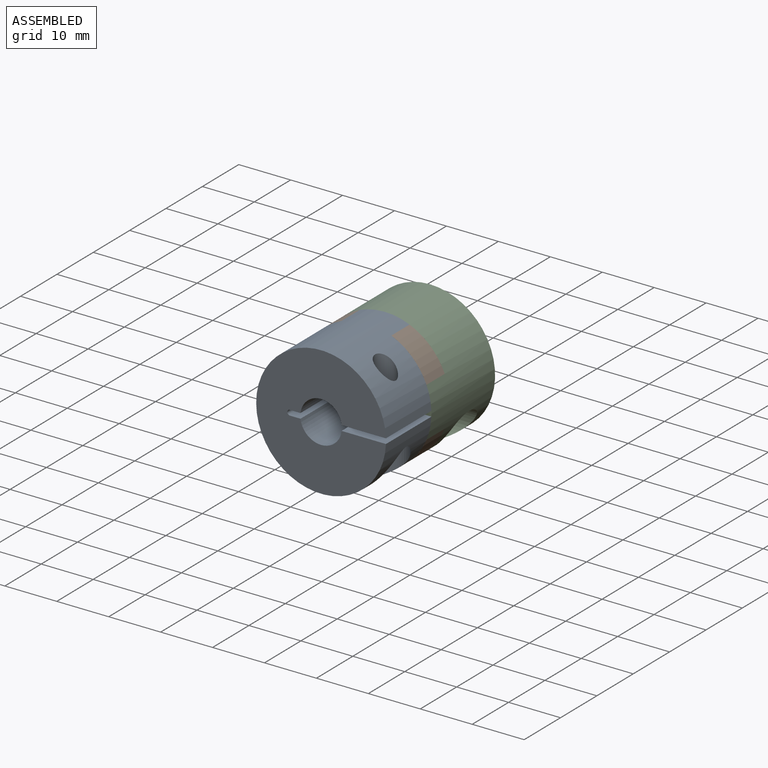
[diagram: assembled view]
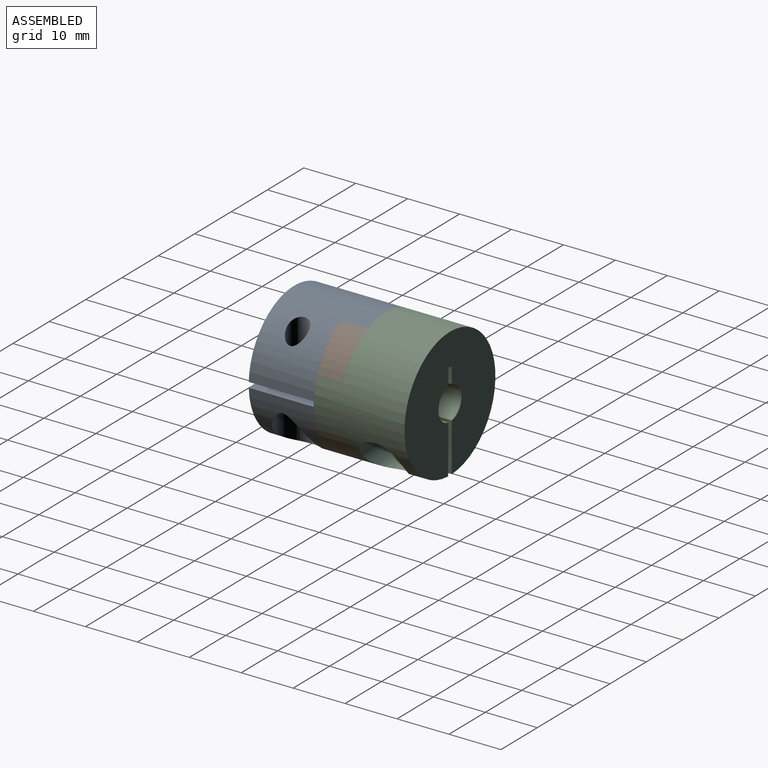
[diagram: assembled view, second angle]
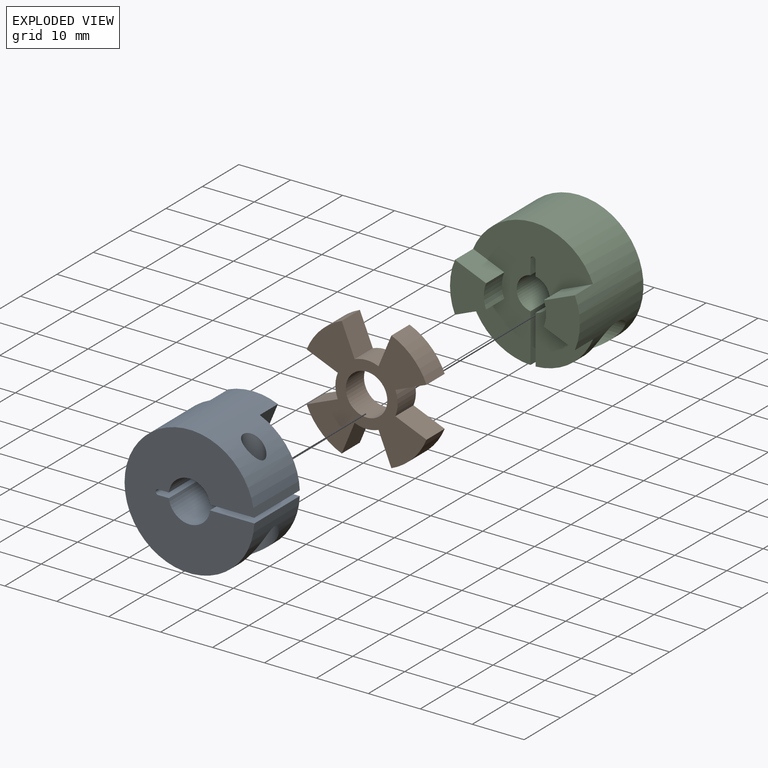
[diagram: exploded view]
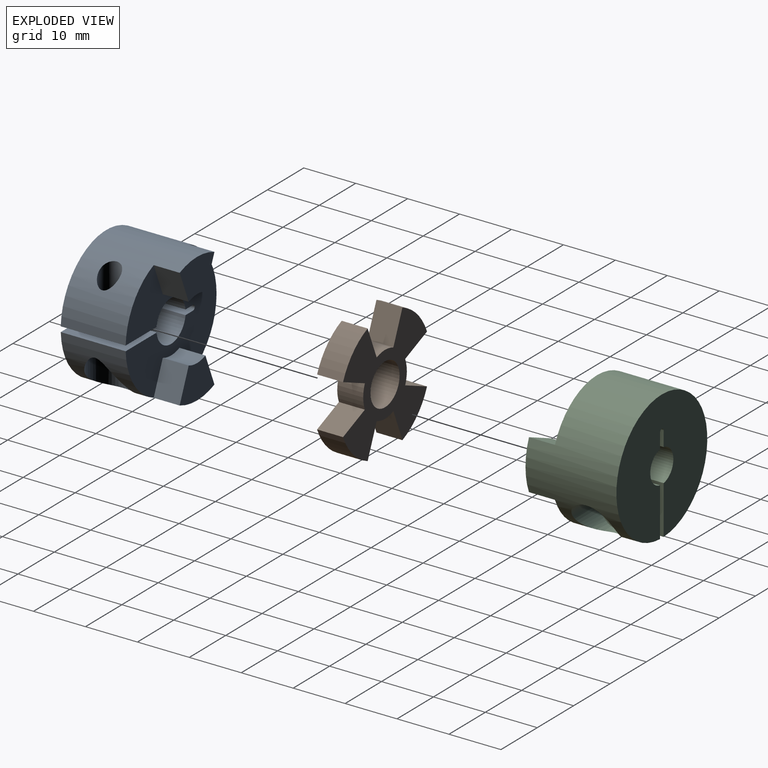
[diagram: exploded view, second angle]
ASSEMBLY  parts=3 mates=2
PART A: 22 faces, bbox 25x17.5x25 mm
  f0: cylinder r=12.5mm len=25mm, axis (0,1,0), area 978.8mm2, adj f1,f2,f8,f9,f10,f11,f13,f14
  f1: plane 12.5x8.52mm, normal (-1,0,0), area 94mm2, adj f0,f3,f10,f17,f18
  f2: plane 12.5x8.52mm, normal (1,0,0), area 94mm2, adj f0,f4,f10,f17,f21
  f3: cylinder r=4mm len=12.5mm, axis (0,1,0), area 144.5mm2, adj f1,f7,f10,f17
  f4: cylinder r=4mm len=12.5mm, axis (0,1,0), area 144.5mm2, adj f2,f5,f10,f17
  f5: plane 12.5x2.03mm, normal (1,0,0), area 25.4mm2, adj f4,f6,f10,f17
  f6: cylinder r=0.5mm len=12.5mm, axis (0,1,0), area 19.6mm2, adj f5,f7,f10,f17
  f7: plane 12.5x2.03mm, normal (-1,0,0), area 25.4mm2, adj f3,f6,f10,f17
  f8: plane 9.57x6.96mm, normal (0,-1,0), area 47.2mm2, adj f0,f11,f12,f13
  f9: plane 9.57x6.96mm, normal (0,-1,0), area 47.2mm2, adj f0,f14,f15,f16
  f10: plane 25x24.99mm, normal (0,1,0), area 429.7mm2, adj f0,f1,f2,f3,f4,f5,f6,f7
  f11: plane 6.01x5mm, normal (0.38,0,0.92), area 32.5mm2, adj f0,f8,f12,f17
  f12: cylinder r=6mm len=5mm, axis (0,-1,0), area 23.6mm2, adj f8,f11,f13,f17
  f13: plane 6.01x5mm, normal (0.38,0,-0.92), area 32.5mm2, adj f0,f8,f12,f17
  f14: plane 6.01x5mm, normal (-0.38,0,-0.92), area 32.5mm2, adj f0,f9,f15,f17
  f15: cylinder r=6mm len=5mm, axis (0,-1,0), area 23.6mm2, adj f9,f14,f16,f17
  f16: plane 6.01x5mm, normal (-0.38,0,0.92), area 32.5mm2, adj f0,f9,f15,f17
  f17: plane 24.99x23.1mm, normal (0,-1,0), area 335.3mm2, adj f0,f1,f2,f3,f4,f5,f6,f7
  f18: cylinder r=2mm len=4mm, axis (1,0,0), area 25.1mm2, adj f1,f19
  f19: plane 8x8mm, normal (1,0,0), area 37.7mm2, adj f18,f20
  f20: cylinder r=4mm len=9.34mm, axis (1,0,0), area 156.6mm2, adj f0,f19
  f21: cylinder r=2mm len=10.47mm, axis (1,0,0), area 112.1mm2, adj f0,f2
PART B: 19 faces, bbox 23.1x5x23.1 mm
  f0: cylinder r=12.5mm len=6.77mm, axis (0,1,0), area 49.1mm2, adj f1,f15,f17,f18
  f1: plane 6.01x5mm, normal (-0.38,0,-0.92), area 32.5mm2, adj f0,f2,f17,f18
  f2: cylinder r=6mm len=5mm, axis (0,1,0), area 23.6mm2, adj f1,f3,f17,f18
  f3: plane 6.01x5mm, normal (-0.38,0,0.92), area 32.5mm2, adj f2,f4,f17,f18
  f4: cylinder r=12.5mm len=6.77mm, axis (0,1,0), area 49.1mm2, adj f3,f5,f17,f18
  f5: plane 6.01x5mm, normal (0.92,0,-0.38), area 32.5mm2, adj f4,f6,f17,f18
  f6: cylinder r=6mm len=5mm, axis (0,1,0), area 23.6mm2, adj f5,f7,f17,f18
  f7: plane 6.01x5mm, normal (-0.92,0,-0.38), area 32.5mm2, adj f6,f8,f17,f18
  f8: cylinder r=12.5mm len=6.77mm, axis (0,1,0), area 49.1mm2, adj f7,f9,f17,f18
  f9: plane 6.01x5mm, normal (0.38,0,0.92), area 32.5mm2, adj f8,f10,f17,f18
  f10: cylinder r=6mm len=5mm, axis (0,1,0), area 23.6mm2, adj f9,f11,f17,f18
  f11: plane 6.01x5mm, normal (0.38,0,-0.92), area 32.5mm2, adj f10,f12,f17,f18
  f12: cylinder r=12.5mm len=6.77mm, axis (0,1,0), area 49.1mm2, adj f11,f13,f17,f18
  f13: plane 6.01x5mm, normal (-0.92,0,0.38), area 32.5mm2, adj f12,f14,f17,f18
  f14: cylinder r=6mm len=5mm, axis (0,1,0), area 23.6mm2, adj f13,f15,f17,f18
  f15: plane 6.01x5mm, normal (0.92,0,0.38), area 32.5mm2, adj f0,f14,f17,f18
  f16: cylinder r=4mm len=8mm, axis (0,1,0), area 125.7mm2, adj f17,f18
  f17: plane 23.1x23.1mm, normal (0,-1,0), area 251.7mm2, adj f0,f1,f2,f3,f4,f5,f6,f7
  f18: plane 23.1x23.1mm, normal (0,1,0), area 251.7mm2, adj f0,f1,f2,f3,f4,f5,f6,f7
PART C: 22 faces, bbox 25x17.5x25 mm
  f0: cylinder r=12.5mm len=25mm, axis (0,1,0), area 978.8mm2, adj f1,f2,f8,f9,f10,f11,f13,f14
  f1: plane 12.5x9.35mm, normal (-1,0,0), area 104.4mm2, adj f0,f3,f10,f17,f18
  f2: plane 12.5x9.35mm, normal (1,0,0), area 104.4mm2, adj f0,f4,f10,f17,f21
  f3: cylinder r=3.17mm len=12.5mm, axis (0,1,0), area 112.1mm2, adj f1,f7,f10,f17
  f4: cylinder r=3.17mm len=12.5mm, axis (0,1,0), area 112.1mm2, adj f2,f5,f10,f17
  f5: plane 12.5x2.86mm, normal (1,0,0), area 35.8mm2, adj f4,f6,f10,f17
  f6: cylinder r=0.5mm len=12.5mm, axis (0,1,0), area 19.6mm2, adj f5,f7,f10,f17
  f7: plane 12.5x2.86mm, normal (-1,0,0), area 35.8mm2, adj f3,f6,f10,f17
  f8: plane 9.57x6.96mm, normal (0,-1,0), area 47.2mm2, adj f0,f11,f12,f13
  f9: plane 9.57x6.96mm, normal (0,-1,0), area 47.2mm2, adj f0,f14,f15,f16
  f10: plane 25x24.99mm, normal (0,1,0), area 446.6mm2, adj f0,f1,f2,f3,f4,f5,f6,f7
  f11: plane 6.01x5mm, normal (0.38,0,0.92), area 32.5mm2, adj f0,f8,f12,f17
  f12: cylinder r=6mm len=5mm, axis (0,-1,0), area 23.6mm2, adj f8,f11,f13,f17
  f13: plane 6.01x5mm, normal (0.38,0,-0.92), area 32.5mm2, adj f0,f8,f12,f17
  f14: plane 6.01x5mm, normal (-0.38,0,-0.92), area 32.5mm2, adj f0,f9,f15,f17
  f15: cylinder r=6mm len=5mm, axis (0,-1,0), area 23.6mm2, adj f9,f14,f16,f17
  f16: plane 6.01x5mm, normal (-0.38,0,0.92), area 32.5mm2, adj f0,f9,f15,f17
  f17: plane 24.99x23.1mm, normal (0,-1,0), area 352.2mm2, adj f0,f1,f2,f3,f4,f5,f6,f7
  f18: cylinder r=2mm len=4mm, axis (1,0,0), area 25.1mm2, adj f1,f19
  f19: plane 8x8mm, normal (1,0,0), area 37.7mm2, adj f18,f20
  f20: cylinder r=4mm len=9.34mm, axis (1,0,0), area 156.6mm2, adj f0,f19
  f21: cylinder r=2mm len=10.47mm, axis (1,0,0), area 112.1mm2, adj f0,f2
PLACE A rot(axis=(0.71,0,-0.71),180deg) t=(51.99,-14.43,-17.92)mm
PLACE B rot(axis=(0,1,0),90deg) t=(51.99,3.07,-17.92)mm
PLACE C t=(51.99,15.57,-17.92)mm
MATE fastened B.f16 <-> C.f4  axis (0,1,0) through (51.99,3.07,-17.92)mm
MATE fastened A.f3 <-> B.f16  axis (0,-1,0) through (51.99,-1.93,-17.92)mm
